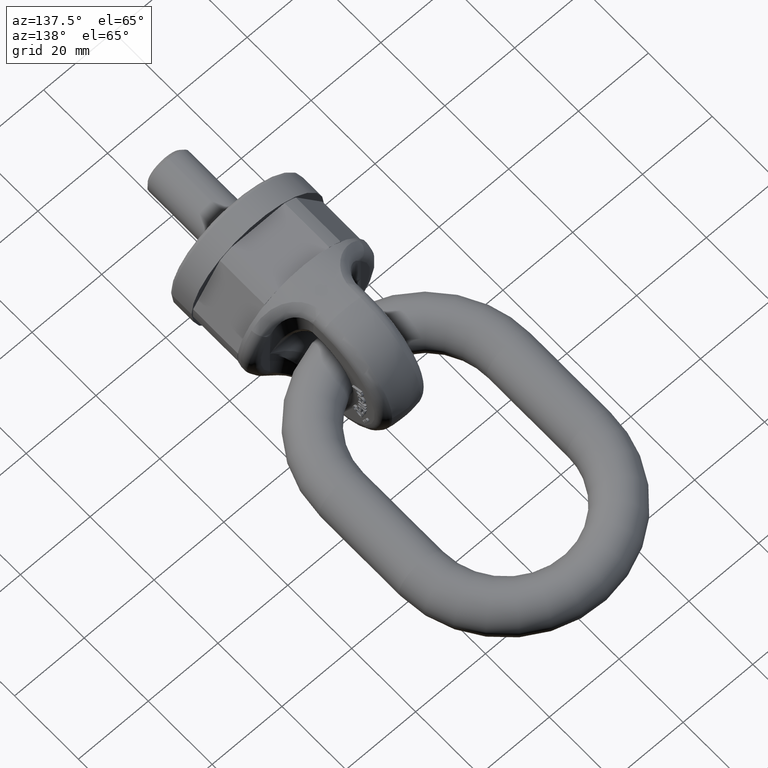
[diagram: clean part render]
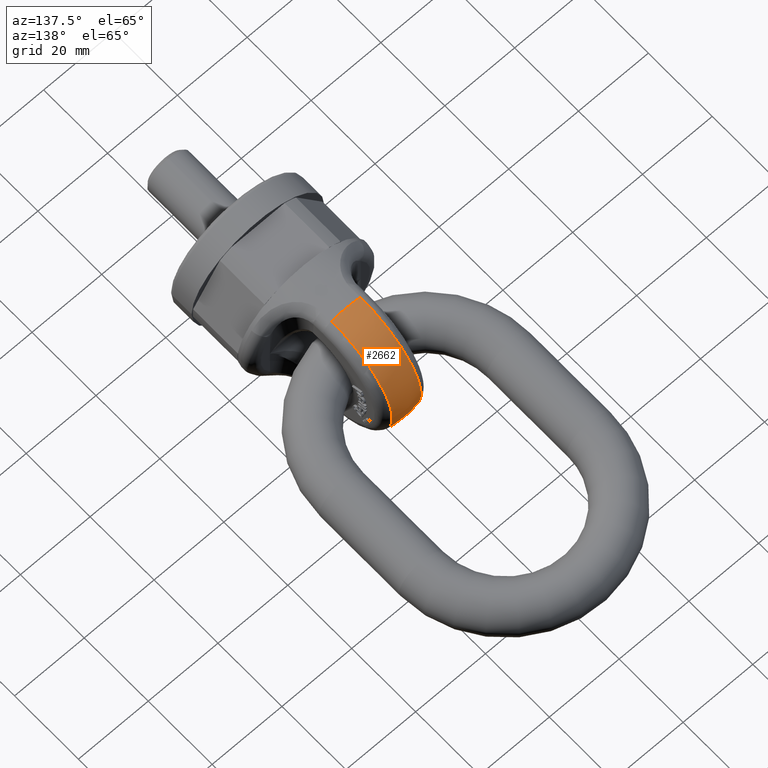
[diagram: same view with one face highlighted and labeled with its STEP entity id]
A machine part, auxiliary view. The second image highlights one B-rep face of the part: STEP entity #2662.
In plain terms, the highlighted spherical surface has radius 19 mm.
Its self-contained STEP definition (entity closure, byte-faithful):
#307=SPHERICAL_SURFACE('',#5652,19.);
#1814=FACE_OUTER_BOUND('',#3098,.T.);
#2662=ADVANCED_FACE('',(#1814),#307,.T.);
#3098=EDGE_LOOP('',(#3526,#3527,#3528,#3529));
#3526=ORIENTED_EDGE('',*,*,#5060,.F.);
#3527=ORIENTED_EDGE('',*,*,#5071,.T.);
#3528=ORIENTED_EDGE('',*,*,#5066,.F.);
#3529=ORIENTED_EDGE('',*,*,#5072,.T.);
#4647=VERTEX_POINT('',#7019);
#4648=VERTEX_POINT('',#7021);
#4653=VERTEX_POINT('',#7055);
#4654=VERTEX_POINT('',#7057);
#5060=EDGE_CURVE('',#4647,#4648,#5554,.T.);
#5066=EDGE_CURVE('',#4653,#4654,#5556,.T.);
#5071=EDGE_CURVE('',#4647,#4654,#5558,.T.);
#5072=EDGE_CURVE('',#4653,#4648,#5559,.T.);
#5554=CIRCLE('',#5645,18.9937982914999);
#5556=CIRCLE('',#5647,18.9937982914999);
#5558=CIRCLE('',#5650,18.5398378077452);
#5559=CIRCLE('',#5651,18.5398378077452);
#5645=AXIS2_PLACEMENT_3D('',#7020,#5961,#5962);
#5647=AXIS2_PLACEMENT_3D('',#7056,#5965,#5966);
#5650=AXIS2_PLACEMENT_3D('',#7087,#5971,#5972);
#5651=AXIS2_PLACEMENT_3D('',#7088,#5973,#5974);
#5652=AXIS2_PLACEMENT_3D('',#7089,#5975,#5976);
#5961=DIRECTION('',(0.,-1.,0.));
#5962=DIRECTION('',(0.,0.,-1.));
#5965=DIRECTION('',(0.,-1.,0.));
#5966=DIRECTION('',(0.,0.,-1.));
#5971=DIRECTION('',(1.,3.58908305374512E-16,2.34291072916505E-15));
#5972=DIRECTION('',(3.74269396305529E-16,-1.,8.31045002381911E-31));
#5973=DIRECTION('',(-1.,3.58908305374512E-16,0.));
#5974=DIRECTION('',(-3.74269396305529E-16,-1.,0.));
#5975=DIRECTION('',(6.12323399573677E-17,-1.,0.));
#5976=DIRECTION('',(1.,0.,0.));
#7019=CARTESIAN_POINT('',(-4.15624999999995,34.514586298282,-18.5334821195501));
#7020=CARTESIAN_POINT('',(0.,34.514586298282,0.));
#7021=CARTESIAN_POINT('',(4.15625,34.514586298282,-18.5334821195501));
#7055=CARTESIAN_POINT('',(4.15625,34.514586298282,18.5334821195501));
#7056=CARTESIAN_POINT('',(0.,34.514586298282,0.));
#7057=CARTESIAN_POINT('',(-4.15625000000004,34.514586298282,18.5334821195501));
#7087=CARTESIAN_POINT('',(-4.15625,35.,-9.73772271809223E-15));
#7088=CARTESIAN_POINT('',(4.15625,35.,0.));
#7089=CARTESIAN_POINT('',(0.,35.,0.));